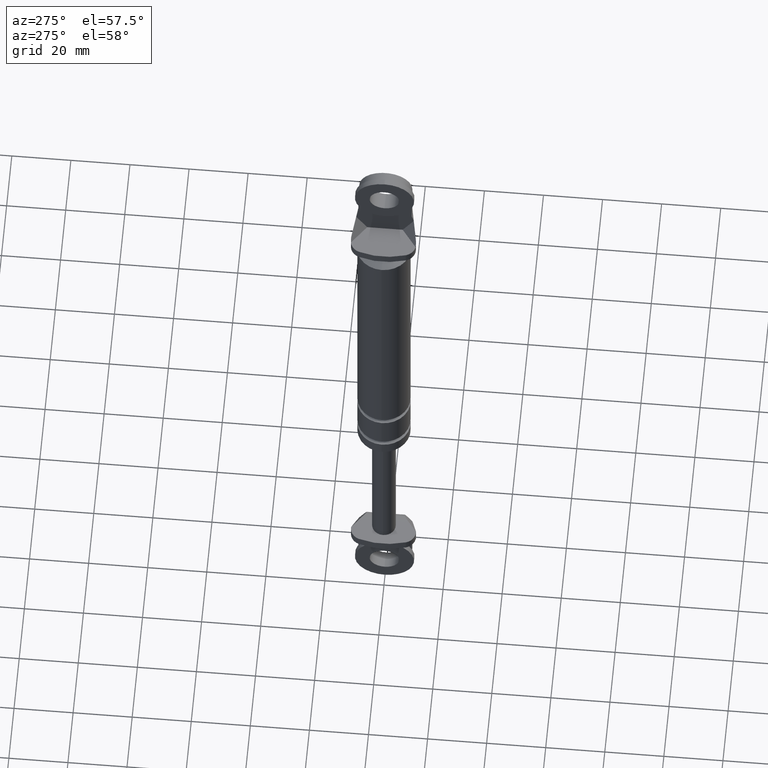
[diagram: clean part render]
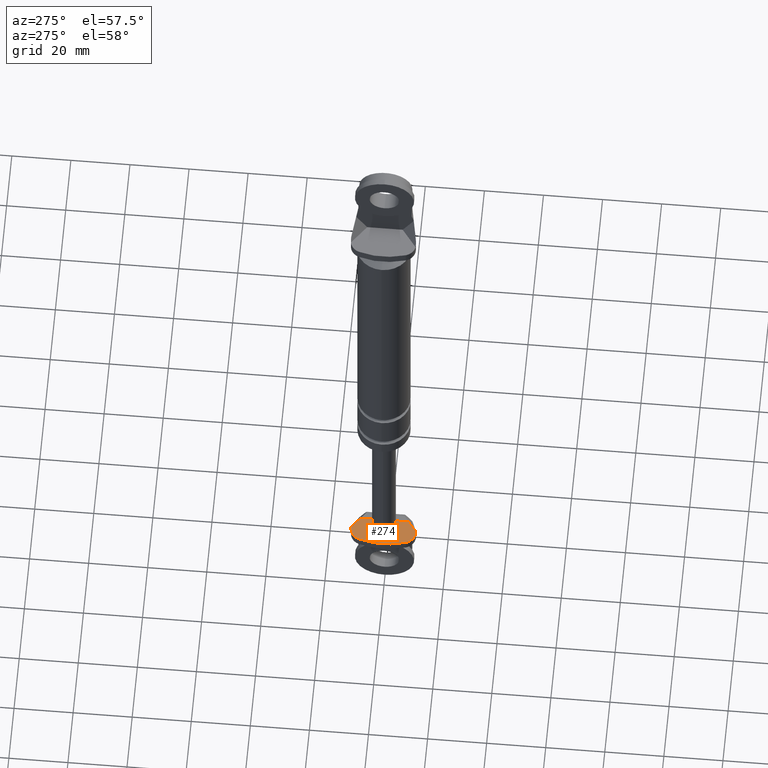
[diagram: same view with one face highlighted and labeled with its STEP entity id]
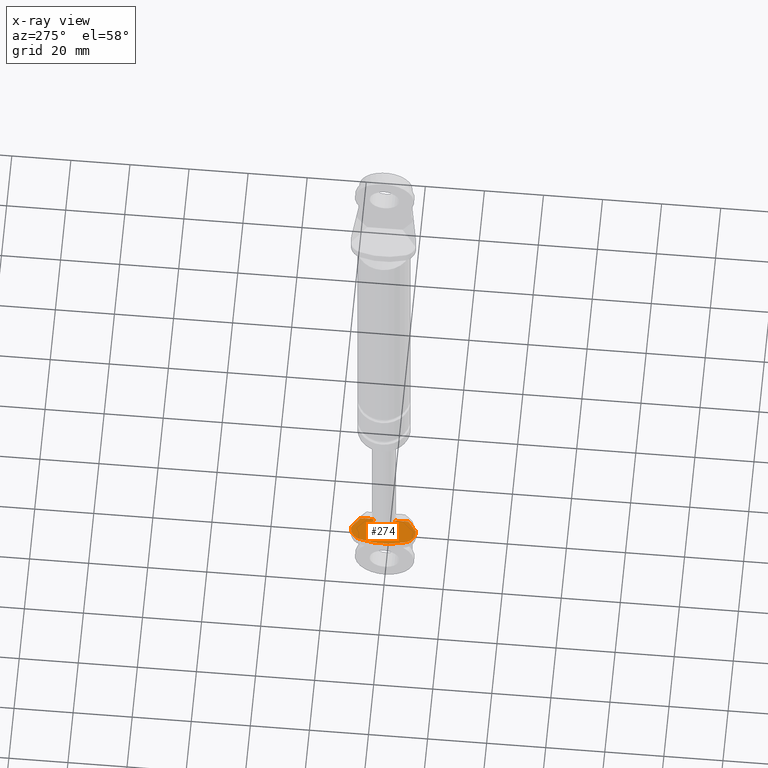
[diagram: x-ray of the same camera — body ghosted, the highlighted face saturated]
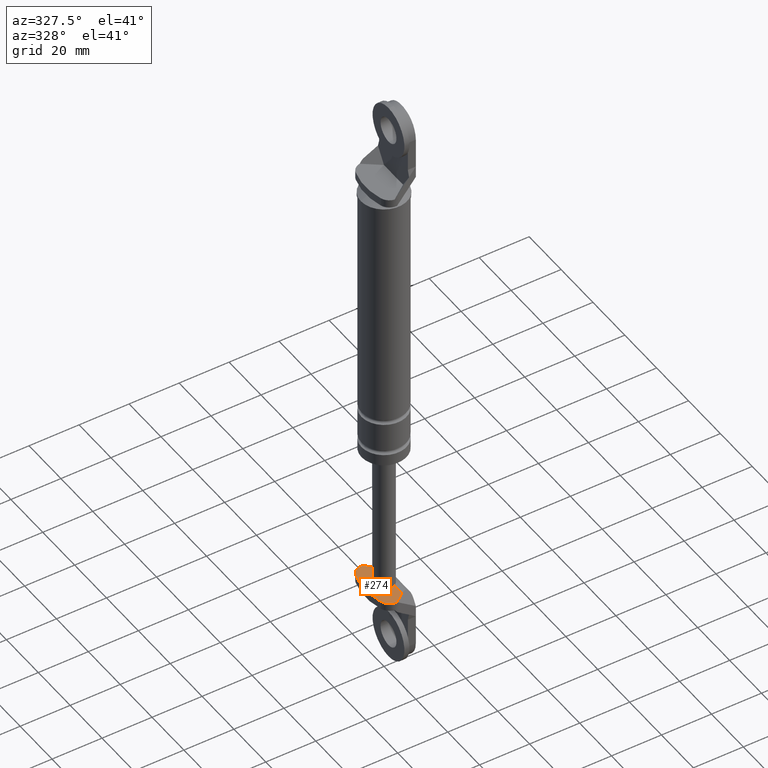
[diagram: same view with one face highlighted and labeled with its STEP entity id]
A machine part, auxiliary view. The second image highlights one B-rep face of the part: STEP entity #274.
The next image is the same camera in x-ray: the body ghosted, the highlighted face saturated — about 0% of this face is hidden behind the body in this view.
A second angle (auxiliary view) of the same face is appended — the face is thin or edge-on in the first view.
In plain terms, the highlighted planar face has unit normal (0, 0, -1).
Its self-contained STEP definition (entity closure, byte-faithful):
#274=ADVANCED_FACE('',(#997),#996,.F.);
#996=PLANE('',#1655);
#997=FACE_OUTER_BOUND('',#1656,.T.);
#1652=CARTESIAN_POINT('',(-9.85957872015E+000,1.34940142871E+001,-8.80000150000E+001));
#1653=DIRECTION('',(0.00000000000E+000,0.00000000000E+000,-1.00000000000E+000));
#1654=DIRECTION('',(1.00000000000E+000,0.00000000000E+000,0.00000000000E+000));
#1655=AXIS2_PLACEMENT_3D('',#1652,#1653,#1654);
#1656=EDGE_LOOP('',(#2098,#2099,#2100,#2101,#2102,#2103,#2104,#2105,#2106));
#2098=ORIENTED_EDGE('',*,*,#2340,.T.);
#2099=ORIENTED_EDGE('',*,*,#2341,.T.);
#2100=ORIENTED_EDGE('',*,*,#2342,.T.);
#2101=ORIENTED_EDGE('',*,*,#2286,.T.);
#2102=ORIENTED_EDGE('',*,*,#2309,.F.);
#2103=ORIENTED_EDGE('',*,*,#2343,.T.);
#2104=ORIENTED_EDGE('',*,*,#2344,.F.);
#2105=ORIENTED_EDGE('',*,*,#2345,.F.);
#2106=ORIENTED_EDGE('',*,*,#2302,.F.);
#2286=EDGE_CURVE('',#3206,#3198,#3207,.T.);
#2302=EDGE_CURVE('',#3315,#3316,#3317,.T.);
#2309=EDGE_CURVE('',#3358,#3198,#3365,.T.);
#2340=EDGE_CURVE('',#3315,#3543,#3569,.T.);
#2341=EDGE_CURVE('',#3543,#3575,#3576,.T.);
#2342=EDGE_CURVE('',#3575,#3206,#3582,.T.);
#2343=EDGE_CURVE('',#3358,#3588,#3589,.T.);
#2344=EDGE_CURVE('',#3595,#3588,#3596,.T.);
#2345=EDGE_CURVE('',#3316,#3595,#3602,.T.);
#3198=VERTEX_POINT('',#4187);
#3206=VERTEX_POINT('',#4192);
#3207=LINE('',#4193,#4194);
#3315=VERTEX_POINT('',#4257);
#3316=VERTEX_POINT('',#4258);
#3317=LINE('',#4259,#4260);
#3358=VERTEX_POINT('',#4282);
#3365=LINE('',#4286,#4287);
#3543=VERTEX_POINT('',#4392);
#3569=LINE('',#4409,#4410);
#3575=VERTEX_POINT('',#4412);
#3576=CIRCLE('',#4416,4.00000000000E+000);
#3582=CIRCLE('',#4420,4.00000000000E+000);
#3588=VERTEX_POINT('',#4421);
#3589=CIRCLE('',#4425,4.39713591772E+000);
#3595=VERTEX_POINT('',#4426);
#3596=CIRCLE('',#4430,2.63230550000E+001);
#3602=CIRCLE('',#4434,4.39713591772E+000);
#4187=CARTESIAN_POINT('',(2.00000000000E+000,8.15494040508E+000,-8.80000150000E+001));
#4192=CARTESIAN_POINT('',(2.00000000000E+000,3.46410161514E+000,-8.80000150000E+001));
#4193=CARTESIAN_POINT('',(2.00000000000E+000,3.46410161514E+000,-8.80000150000E+001));
#4194=VECTOR('',#4195,4.69083878994E+000);
#4195=DIRECTION('',(0.00000000000E+000,1.00000000000E+000,0.00000000000E+000));
#4257=CARTESIAN_POINT('',(2.00000000000E+000,-8.15494040508E+000,-8.80000150000E+001));
#4258=CARTESIAN_POINT('',(-1.76021905611E+000,-1.09879870281E+001,-8.80000150000E+001));
#4259=CARTESIAN_POINT('',(2.00000000000E+000,-8.15494040508E+000,-8.80000150000E+001));
#4260=VECTOR('',#4261,4.70801449851E+000);
#4261=DIRECTION('',(-7.98684680623E-001,-6.01749766047E-001,0.00000000000E+000));
#4282=CARTESIAN_POINT('',(-1.76021905611E+000,1.09879870281E+001,-8.80000150000E+001));
#4286=CARTESIAN_POINT('',(-1.76021905611E+000,1.09879870281E+001,-8.80000150000E+001));
#4287=VECTOR('',#4288,4.70801449851E+000);
#4288=DIRECTION('',(7.98684680623E-001,-6.01749766047E-001,0.00000000000E+000));
#4392=CARTESIAN_POINT('',(2.00000000000E+000,-3.46410161514E+000,-8.80000150000E+001));
#4409=CARTESIAN_POINT('',(2.00000000000E+000,-8.15494040508E+000,-8.80000150000E+001));
#4410=VECTOR('',#4411,4.69083878994E+000);
#4411=DIRECTION('',(0.00000000000E+000,1.00000000000E+000,0.00000000000E+000));
#4412=CARTESIAN_POINT('',(-4.00000000000E+000,-4.44089209850E-016,-8.80000150000E+001));
#4413=CARTESIAN_POINT('',(-1.38555833473E-013,0.00000000000E+000,-8.80000150000E+001));
#4414=DIRECTION('',(0.00000000000E+000,0.00000000000E+000,-1.00000000000E+000));
#4415=DIRECTION('',(1.00000000000E+000,-0.00000000000E+000,-0.00000000000E+000));
#4416=AXIS2_PLACEMENT_3D('',#4413,#4414,#4415);
#4417=CARTESIAN_POINT('',(-1.38555833473E-013,0.00000000000E+000,-8.80000150000E+001));
#4418=DIRECTION('',(0.00000000000E+000,0.00000000000E+000,-1.00000000000E+000));
#4419=DIRECTION('',(1.00000000000E+000,-0.00000000000E+000,-0.00000000000E+000));
#4420=AXIS2_PLACEMENT_3D('',#4417,#4418,#4419);
#4421=CARTESIAN_POINT('',(-6.27804299844E+000,7.92703620510E+000,-8.80000150000E+001));
#4422=CARTESIAN_POINT('',(-2.08502827535E+000,6.60286408228E+000,-8.80000150000E+001));
#4423=DIRECTION('',(0.00000000000E+000,-0.00000000000E+000,1.00000000000E+000));
#4424=DIRECTION('',(-1.00000000000E+000,-0.00000000000E+000,-0.00000000000E+000));
#4425=AXIS2_PLACEMENT_3D('',#4422,#4423,#4424);
#4426=CARTESIAN_POINT('',(-6.27804299844E+000,-7.92703620510E+000,-8.80000150000E+001));
#4427=CARTESIAN_POINT('',(1.88230590000E+001,0.00000000000E+000,-8.80000150000E+001));
#4428=DIRECTION('',(0.00000000000E+000,0.00000000000E+000,-1.00000000000E+000));
#4429=DIRECTION('',(1.00000000000E+000,-0.00000000000E+000,-0.00000000000E+000));
#4430=AXIS2_PLACEMENT_3D('',#4427,#4428,#4429);
#4431=CARTESIAN_POINT('',(-2.08502827535E+000,-6.60286408228E+000,-8.80000150000E+001));
#4432=DIRECTION('',(0.00000000000E+000,0.00000000000E+000,-1.00000000000E+000));
#4433=DIRECTION('',(-1.00000000000E+000,-0.00000000000E+000,-0.00000000000E+000));
#4434=AXIS2_PLACEMENT_3D('',#4431,#4432,#4433);